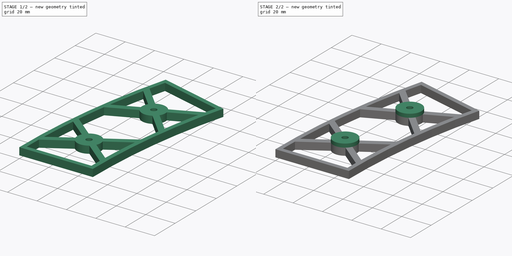
[diagram: build sequence overview — one tinted view per stage of 2, left to right]
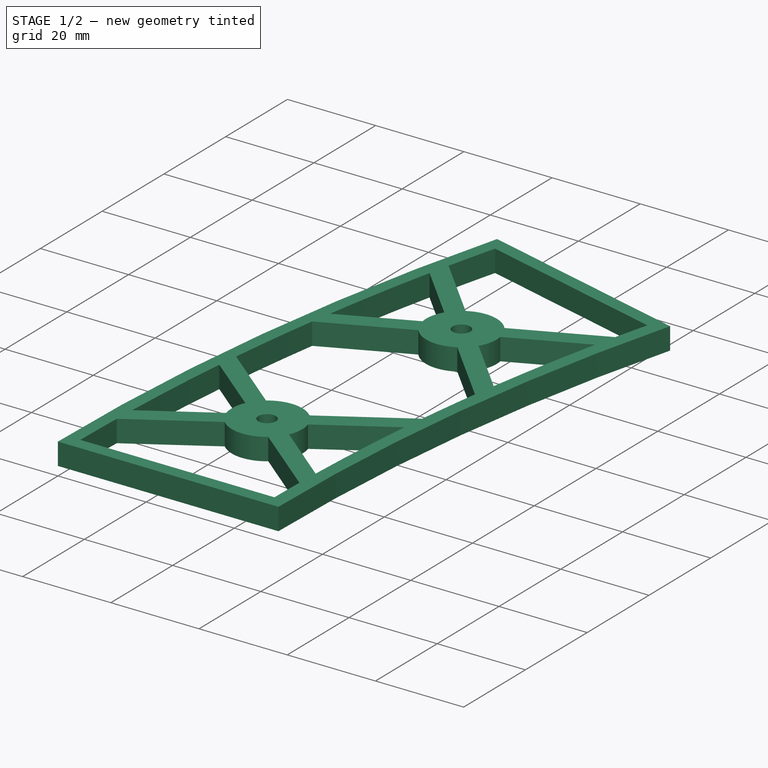
[diagram: stage 1 of 2 — iso view after this stage's code; geometry added in this stage tinted green]
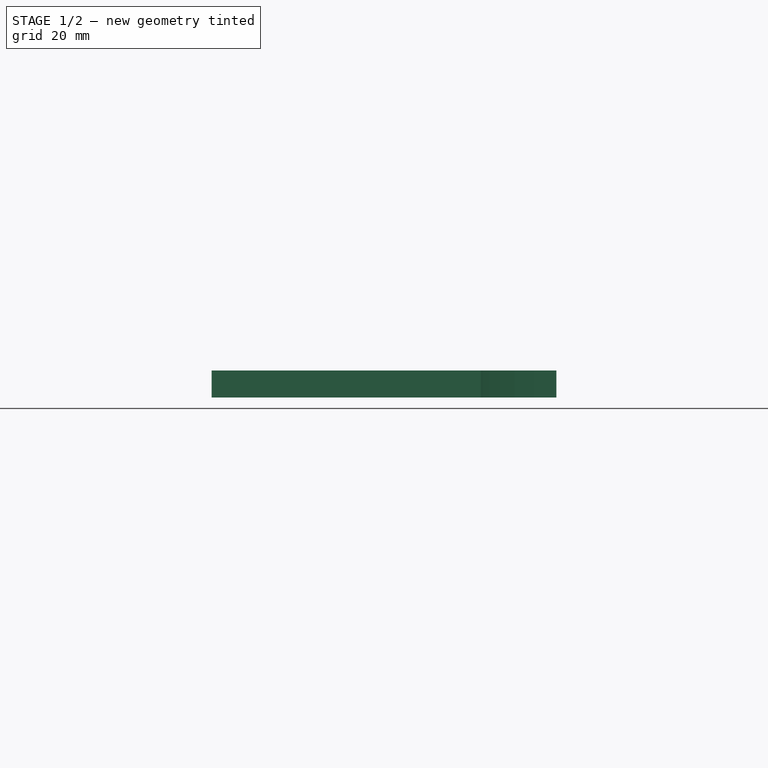
[diagram: stage 1 of 2 — front view after this stage's code; geometry added in this stage tinted green]
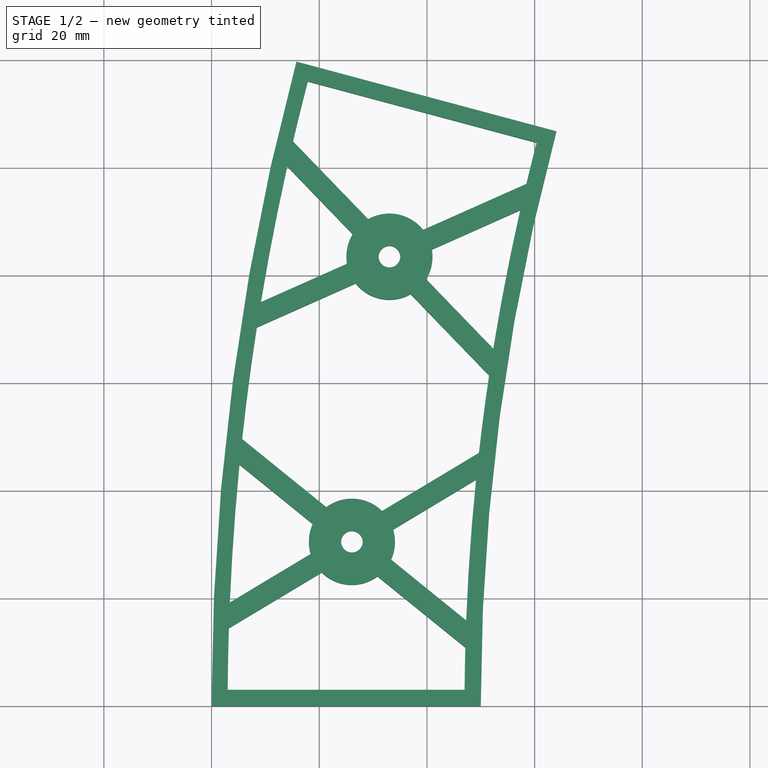
[diagram: stage 1 of 2 — top view after this stage's code; geometry added in this stage tinted green]
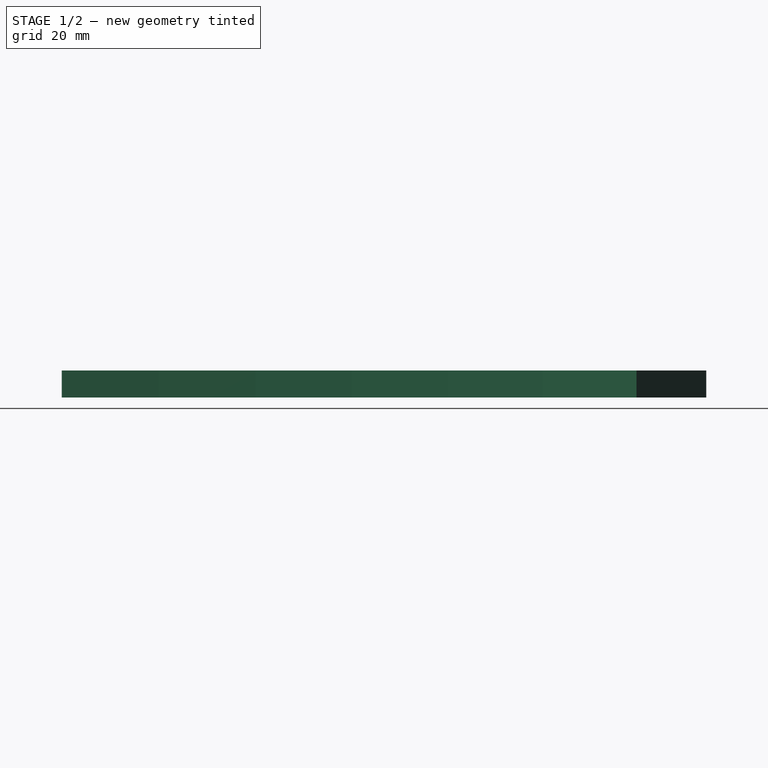
[diagram: stage 1 of 2 — right view after this stage's code; geometry added in this stage tinted green]
FCSTD DOCUMENT  (FreeCAD 0.19R20310 (Git))
Label: R2
License: All rights reserved
LicenseURL: http://en.wikipedia.org/wiki/All_rights_reserved
objects: Sketcher::SketchObject×2, PartDesign::Pad×2, PartDesign::Body×1
note: 7 computed .brp shape members not serialized (recipe doc carries the construction recipe); baked Part::Feature solids carry a one-line shape summary decoded from their .brp

FEATURE [Sketcher::SketchObject] Sketch
  MapMode = 5
  Support = -> [XY_Plane]
  sketch-geometry (49):
    g0: ArcOfCircle CenterX=462.5 CenterY=0 CenterZ=0 NormalX=0 NormalY=0 NormalZ=1 AngleXU=0 Radius=462.5 StartAngle=2.87979 EndAngle=3.14159
    g1: ArcOfCircle CenterX=462.5 CenterY=0 CenterZ=0 NormalX=0 NormalY=0 NormalZ=1 AngleXU=0 Radius=412.5 StartAngle=2.87979 EndAngle=3.14159
    g2: ArcOfCircle [constr] CenterX=462.5 CenterY=0 CenterZ=0 NormalX=0 NormalY=0 NormalZ=1 AngleXU=0 Radius=437.5 StartAngle=2.87979 EndAngle=3.14159
    g3: LineSegment StartX=50 StartY=5.05e-14 StartZ=0 EndX=0 EndY=5.66e-14 EndZ=0
    g4: LineSegment StartX=64.0556 StartY=106.763 StartZ=0 EndX=15.7593 EndY=119.704 EndZ=0
    g5: LineSegment StartX=47 StartY=3 StartZ=0 EndX=3 EndY=3 EndZ=0
    g6: LineSegment StartX=60.3814 StartY=104.642 StartZ=0 EndX=17.8806 EndY=116.03 EndZ=0
    g7: Circle CenterX=26.0657 CenterY=30.5185 CenterZ=0 NormalX=0 NormalY=0 NormalZ=1 AngleXU=0 Radius=2
    g8: ArcOfCircle CenterX=26.0657 CenterY=30.5185 CenterZ=0 NormalX=0 NormalY=0 NormalZ=1 AngleXU=0 Radius=8 StartAngle=2.71359 EndAngle=3.42996
    g9: LineSegment [constr] StartX=2.65406 StartY=49.4769 StartZ=0 EndX=50.1472 EndY=11.0177 EndZ=0
    g10: LineSegment [constr] StartX=0.243399 StartY=15.0028 StartZ=0 EndX=52.6268 EndY=46.478 EndZ=0
    g11: LineSegment StartX=21.3046 StartY=36.9474 StartZ=0 EndX=5.6754 EndY=49.6037 EndZ=0
    g12: LineSegment StartX=18.7873 StartY=33.8389 StartZ=0 EndX=5.18462 EndY=44.8541 EndZ=0
    g13: LineSegment StartX=18.3961 StartY=28.2433 StartZ=0 EndX=3.39269 EndY=19.2284 EndZ=0
    g14: LineSegment StartX=20.4562 StartY=24.8147 StartZ=0 EndX=3.21768 EndY=14.4567 EndZ=0
    g15: LineSegment StartX=30.8268 StartY=24.0895 StartZ=0 EndX=47.1318 EndY=10.886 EndZ=0
    g16: LineSegment StartX=33.3441 StartY=27.1981 StartZ=0 EndX=47.2936 EndY=15.902 EndZ=0
    g17: LineSegment StartX=33.7354 StartY=32.7936 StartZ=0 EndX=49.1212 EndY=42.0383 EndZ=0
    g18: LineSegment StartX=31.6752 StartY=36.2223 StartZ=0 EndX=49.6591 EndY=47.028 EndZ=0
    g19: ArcOfCircle CenterX=26.0657 CenterY=30.5185 CenterZ=0 NormalX=0 NormalY=0 NormalZ=1 AngleXU=0 Radius=8 StartAngle=3.93532 EndAngle=5.34983
    g20: ArcOfCircle CenterX=26.0657 CenterY=30.5185 CenterZ=0 NormalX=0 NormalY=0 NormalZ=1 AngleXU=0 Radius=8 StartAngle=5.85519 EndAngle=6.57156
    g21: ArcOfCircle CenterX=26.0657 CenterY=30.5185 CenterZ=0 NormalX=0 NormalY=0 NormalZ=1 AngleXU=0 Radius=8 StartAngle=0.793732 EndAngle=2.20823
    g22: ArcOfCircle CenterX=462.5 CenterY=0 CenterZ=0 NormalX=0 NormalY=0 NormalZ=1 AngleXU=0 Radius=415.511 StartAngle=3.11539 EndAngle=3.13437
    g23: ArcOfCircle CenterX=462.5 CenterY=0 CenterZ=0 NormalX=0 NormalY=0 NormalZ=1 AngleXU=0 Radius=415.511 StartAngle=3.04025 EndAngle=3.10331
    g24: ArcOfCircle CenterX=462.5 CenterY=0 CenterZ=0 NormalX=0 NormalY=0 NormalZ=1 AngleXU=0 Radius=459.51 StartAngle=3.11013 EndAngle=3.13506
    g25: ArcOfCircle CenterX=462.5 CenterY=0 CenterZ=0 NormalX=0 NormalY=0 NormalZ=1 AngleXU=0 Radius=459.51 StartAngle=3.04382 EndAngle=3.09973
    g26: ArcOfCircle CenterX=462.5 CenterY=0 CenterZ=0 NormalX=0 NormalY=0 NormalZ=1 AngleXU=0 Radius=415.511 StartAngle=2.88701 EndAngle=2.906
    g27: ArcOfCircle CenterX=462.5 CenterY=0 CenterZ=0 NormalX=0 NormalY=0 NormalZ=1 AngleXU=0 Radius=459.51 StartAngle=2.88632 EndAngle=2.91126
    g28: LineSegment [constr] StartX=26.0657 StartY=30.5185 StartZ=0 EndX=462.5 EndY=3.6e-15 EndZ=0
    g29: LineSegment StartX=39.8576 StartY=79.2963 StartZ=0 EndX=52.3264 EndY=66.3844 EndZ=0
    g30: LineSegment StartX=36.9802 StartY=76.5176 StartZ=0 EndX=51.5546 EndY=61.4255 EndZ=0
    g31: LineSegment [constr] StartX=12.1114 StartY=105.149 StartZ=0 EndX=54.5635 EndY=61.1887 EndZ=0
    g32: ArcOfCircle CenterX=33.0381 CenterY=83.4789 CenterZ=0 NormalX=0 NormalY=0 NormalZ=1 AngleXU=0 Radius=8 StartAngle=5.73301 EndAngle=6.44938
    g33: LineSegment [constr] StartX=33.0381 StartY=83.4789 StartZ=0 EndX=462.5 EndY=0 EndZ=0
    g34: ArcOfCircle CenterX=33.0381 CenterY=83.4789 CenterZ=0 NormalX=0 NormalY=0 NormalZ=1 AngleXU=0 Radius=8 StartAngle=3.81315 EndAngle=5.22765
    g35: LineSegment StartX=26.7753 StartY=78.5013 StartZ=0 EndX=8.40292 EndY=70.3214 EndZ=0
    g36: LineSegment [constr] StartX=5.51738 StartY=71.2259 StartZ=0 EndX=61.3462 EndY=96.0825 EndZ=0
    g37: LineSegment StartX=25.1483 StartY=82.1555 StartZ=0 EndX=9.15816 EndY=75.0362 EndZ=0
    g38: ArcOfCircle CenterX=33.0381 CenterY=83.4789 CenterZ=0 NormalX=0 NormalY=0 NormalZ=1 AngleXU=0 Radius=8 StartAngle=2.59142 EndAngle=3.30779
    g39: LineSegment StartX=26.2186 StartY=87.6616 StartZ=0 EndX=14.0597 EndY=100.253 EndZ=0
    g40: LineSegment StartX=29.096 StartY=90.4402 StartZ=0 EndX=15.1257 EndY=104.907 EndZ=0
    g41: ArcOfCircle CenterX=33.0381 CenterY=83.4789 CenterZ=0 NormalX=0 NormalY=0 NormalZ=1 AngleXU=0 Radius=8 StartAngle=0.671559 EndAngle=2.08606
    g42: LineSegment StartX=39.3009 StartY=88.4566 StartZ=0 EndX=58.4676 EndY=96.9902 EndZ=0
    g43: LineSegment StartX=40.9279 StartY=84.8024 StartZ=0 EndX=57.3256 EndY=92.1032 EndZ=0
    g44: Circle CenterX=33.0381 CenterY=83.4789 CenterZ=0 NormalX=0 NormalY=0 NormalZ=1 AngleXU=0 Radius=2
    g45: ArcOfCircle CenterX=462.5 CenterY=0 CenterZ=0 NormalX=0 NormalY=0 NormalZ=1 AngleXU=0 Radius=459.51 StartAngle=2.98795 EndAngle=3.03343
    g46: ArcOfCircle CenterX=462.5 CenterY=0 CenterZ=0 NormalX=0 NormalY=0 NormalZ=1 AngleXU=0 Radius=415.511 StartAngle=2.99322 EndAngle=3.02817
    g47: ArcOfCircle CenterX=462.5 CenterY=0 CenterZ=0 NormalX=0 NormalY=0 NormalZ=1 AngleXU=0 Radius=459.51 StartAngle=2.92165 EndAngle=2.97756
    g48: ArcOfCircle CenterX=462.5 CenterY=0 CenterZ=0 NormalX=0 NormalY=0 NormalZ=1 AngleXU=0 Radius=415.511 StartAngle=2.91807 EndAngle=2.98114
  constraints (162):
    c: PointOnObject(g0,g-1)
    c: Coincident(g0,g-1)
    c: PointOnObject(g1,g-1)
    c: Coincident(g2,g0)
    c: PointOnObject(g2,g-1)
    c: Coincident(g0,g1)
    c: Radius(g2) = 437.5
    c: DistanceX(g0,g2) = 25
    c: DistanceX(g2,g1) = 25
    c: Coincident(g3,g1)
    c: Coincident(g3,g0)
    c: Coincident(g4,g1)
    c: Coincident(g4,g0)
    c: PointOnObject(g2,g4)
    c: Perpendicular(g2,g4)
    c: Angle(g4,g3) = 0.261799
    c: Coincident(g5,g22)
    c: Coincident(g5,g24)
    c: Horizontal(g5)
    c: Parallel(g6,g4)
    c: DistanceY(g1,g22) = 3
    c: DistanceX(g0,g24) = 3
    c: DistanceX(g22,g1) = 3
    c: Coincident(g8,g7)
    c: Radius(g8) = 8
    c: PointOnObject(g7,g10)
    c: PointOnObject(g7,g9)
    c: Parallel(g12,g9)
    c: Parallel(g9,g11)
    c: Coincident(g8,g12)
    c: PointOnObject(g14,g8)
    c: PointOnObject(g16,g8)
    c: PointOnObject(g15,g8)
    c: PointOnObject(g17,g8)
    c: PointOnObject(g18,g8)
    c: Parallel(g14,g10)
    c: Parallel(g13,g10)
    c: Parallel(g9,g15)
    c: Parallel(g9,g16)
    c: Parallel(g10,g17)
    c: Parallel(g10,g18)
    c: Equal(g8,g19)
    c: Coincident(g8,g13)
    c: Coincident(g8,g19)
    c: PointOnObject(g19,g14)
    c: Equal(g19,g20)
    c: PointOnObject(g19,g15)
    c: Coincident(g19,g20)
    c: PointOnObject(g20,g16)
    c: Equal(g20,g21)
    c: PointOnObject(g20,g17)
    c: Coincident(g20,g21)
    c: PointOnObject(g21,g18)
    c: Distance(g8,g9) = 2
    c: Distance(g15,g9) = 2
    c: Distance(g17,g10) = 2
    c: Distance(g14,g10) = 2
    c: Distance(g8,g10) = 2
    c: Coincident(g11,g21)
    c: PointOnObject(g21,g2)
    c: Coincident(g23,g16)
    c: Coincident(g22,g15)
    c: Coincident(g46,g18)
    c: Coincident(g23,g17)
    c: Coincident(g25,g13)
    c: Coincident(g24,g14)
    c: Coincident(g45,g11)
    c: Coincident(g25,g12)
    c: Distance(g16,g9) = 2
    c: Distance(g18,g10) = 2
    c: Distance(g11,g9) = 2
    c: Coincident(g28,g0)
    c: Angle(g28,g-1) = 0.0698132
    c: Coincident(g28,g7)
    c: Coincident(g38,g44)
    c: Radius(g38) = 8
    c: PointOnObject(g44,g36)
    c: PointOnObject(g44,g31)
    c: Parallel(g39,g31)
    c: Parallel(g31,g40)
    c: Coincident(g38,g39)
    c: PointOnObject(g35,g38)
    c: PointOnObject(g29,g38)
    c: PointOnObject(g30,g38)
    c: PointOnObject(g43,g38)
    c: PointOnObject(g42,g38)
    c: Parallel(g35,g36)
    c: Parallel(g37,g36)
    c: Parallel(g31,g30)
    c: Parallel(g31,g29)
    c: Parallel(g36,g43)
    c: Parallel(g36,g42)
    c: Equal(g38,g34)
    c: Coincident(g38,g37)
    c: Coincident(g38,g34)
    c: PointOnObject(g34,g35)
    c: Equal(g34,g32)
    c: PointOnObject(g34,g30)
    c: Coincident(g34,g32)
    c: PointOnObject(g32,g29)
    c: Equal(g32,g41)
    c: PointOnObject(g32,g43)
    c: Coincident(g32,g41)
    c: PointOnObject(g41,g42)
    c: Distance(g38,g31) = 2
    c: Distance(g30,g31) = 2
    c: Distance(g43,g36) = 2
    c: Distance(g35,g36) = 2
    c: Distance(g38,g36) = 2
    c: Coincident(g40,g41)
    c: Distance(g29,g31) = 2
    c: Distance(g42,g36) = 2
    c: Distance(g40,g31) = 2
    c: Coincident(g33,g44)
    c: PointOnObject(g32,g2)
    c: PointOnObject(g43,g26)
    c: PointOnObject(g39,g27)
    c: Equal(g27,g45)
    c: Coincident(g47,g37)
    c: Coincident(g45,g35)
    c: Coincident(g27,g45)
    c: Equal(g26,g46)
    c: Coincident(g48,g29)
    c: Coincident(g46,g30)
    c: Coincident(g26,g46)
    c: Equal(g27,g47)
    c: Coincident(g27,g40)
    c: Coincident(g27,g47)
    c: Equal(g26,g48)
    c: Coincident(g26,g42)
    c: Coincident(g26,g48)
    c: PointOnObject(g47,g39)
    c: PointOnObject(g48,g43)
    c: Coincident(g33,g0)
    c: Angle(g33,g-1) = 0.191986
    c: Coincident(g26,g6)
    c: Coincident(g27,g6)
    c: Distance(g6,g4) = 3
    c: Coincident(g0,g26)
    c: Coincident(g0,g27)
    c: Coincident(g0,g22)
    c: Coincident(g0,g23)
    c: Coincident(g0,g24)
    c: Coincident(g0,g25)
    c: Equal(g45,g25)
    c: Equal(g25,g24)
    c: Equal(g22,g23)
    c: Equal(g23,g46)
    c: Angle(g31,g33) = 0.610865
    c: Angle(g33,g36) = 0.610865
    c: Angle(g28,g10) = 0.610865
    c: Angle(g9,g28) = 0.610865
    c: PointOnObject(g9,g0)
    c: PointOnObject(g36,g0)
    c: PointOnObject(g10,g0)
    c: PointOnObject(g9,g1)
    c: PointOnObject(g10,g1)
    c: PointOnObject(g31,g1)
    c: PointOnObject(g36,g1)
    c: PointOnObject(g31,g0)
    c: Radius(g44) = 2
    c: Radius(g7) = 2
FEATURE [PartDesign::Pad] Pad
  Length = 5
  Length2 = 100
  Profile = -> Sketch
  Type = 0
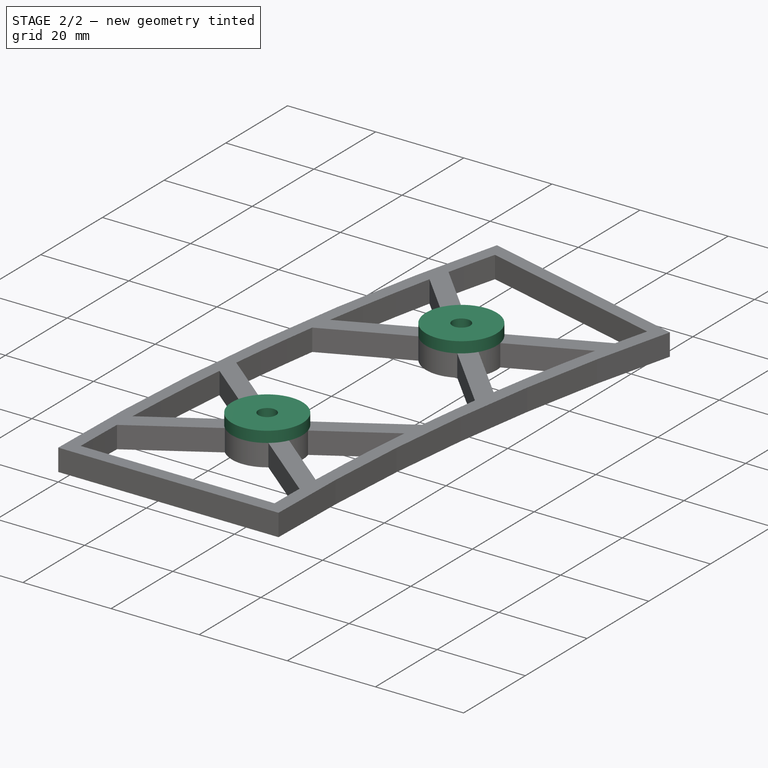
[diagram: stage 2 of 2 — iso view after this stage's code; geometry added in this stage tinted green]
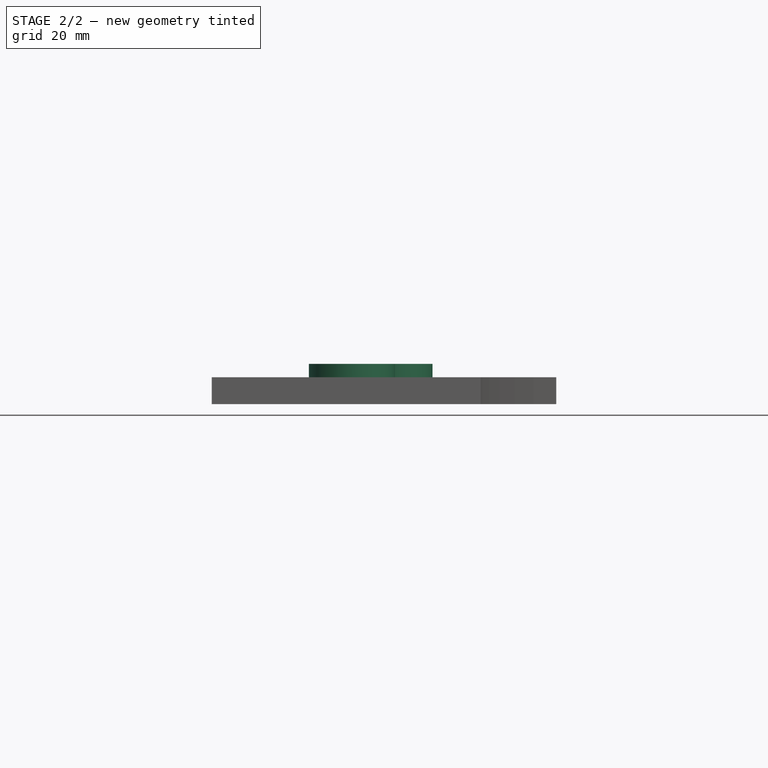
[diagram: stage 2 of 2 — front view after this stage's code; geometry added in this stage tinted green]
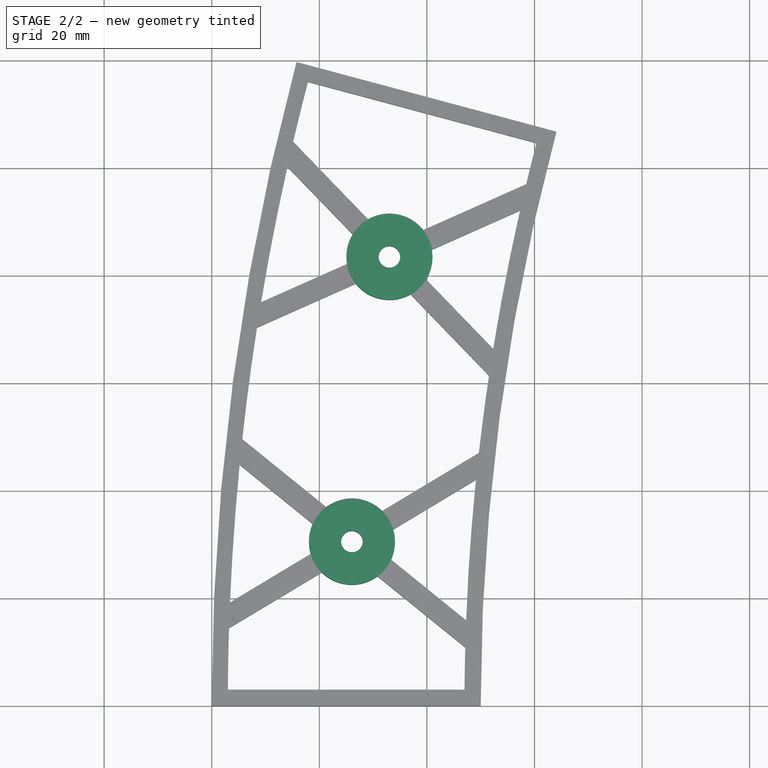
[diagram: stage 2 of 2 — top view after this stage's code; geometry added in this stage tinted green]
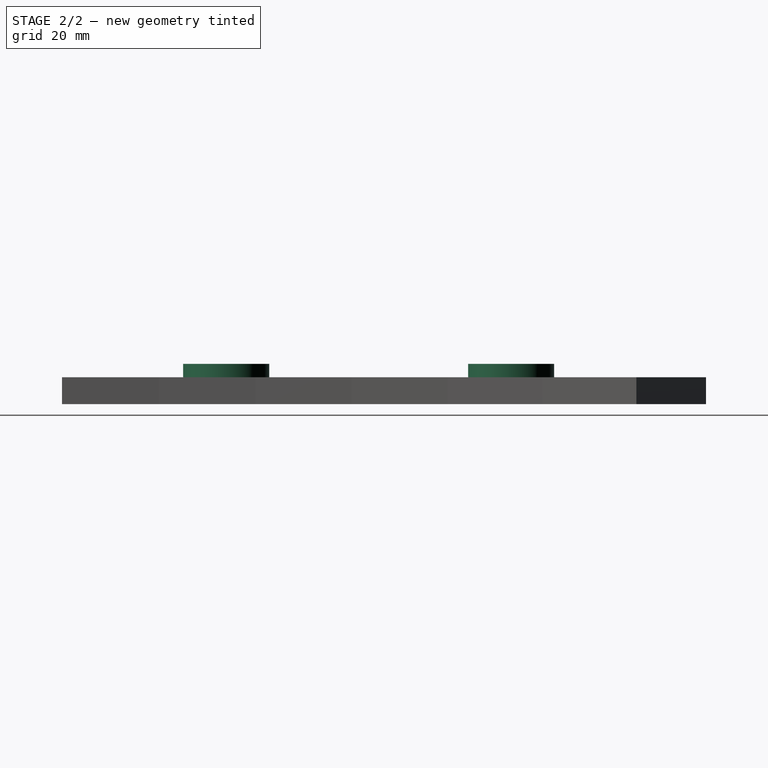
[diagram: stage 2 of 2 — right view after this stage's code; geometry added in this stage tinted green]
FEATURE [Sketcher::SketchObject] Sketch001
  ExternalGeometry = -> [Pad]
  MapMode = 5
  Placement = pos=(0,0,5) rot=(0,0,1;0rad)
  Support = -> [Pad]
  sketch-geometry (4):
    g0: Circle CenterX=33.0381 CenterY=83.4789 CenterZ=0 NormalX=0 NormalY=0 NormalZ=1 AngleXU=0 Radius=8
    g1: Circle CenterX=33.0405 CenterY=83.4543 CenterZ=0 NormalX=0 NormalY=0 NormalZ=1 AngleXU=0 Radius=2.02476
    g2: Circle CenterX=26.0657 CenterY=30.5185 CenterZ=0 NormalX=0 NormalY=0 NormalZ=1 AngleXU=0 Radius=2
    g3: Circle CenterX=26.0657 CenterY=30.5185 CenterZ=0 NormalX=0 NormalY=0 NormalZ=1 AngleXU=0 Radius=8
  constraints (6):
    c: Coincident(g0,g-3)
    c: PointOnObject(g-3,g0)
    c: Tangent(g1,g-4)
    c: Tangent(g2,g-5)
    c: Coincident(g3,g2)
    c: PointOnObject(g-6,g3)
FEATURE [PartDesign::Pad] Pad001
  BaseFeature = -> Pad
  Length = 2.5
  Length2 = 100
  Profile = -> Sketch001
  Type = 0
FEATURE [PartDesign::Body] Body
  Group = -> [Sketch,Pad,Sketch001,Pad001]
  Origin = -> Origin
  Tip = -> Pad001
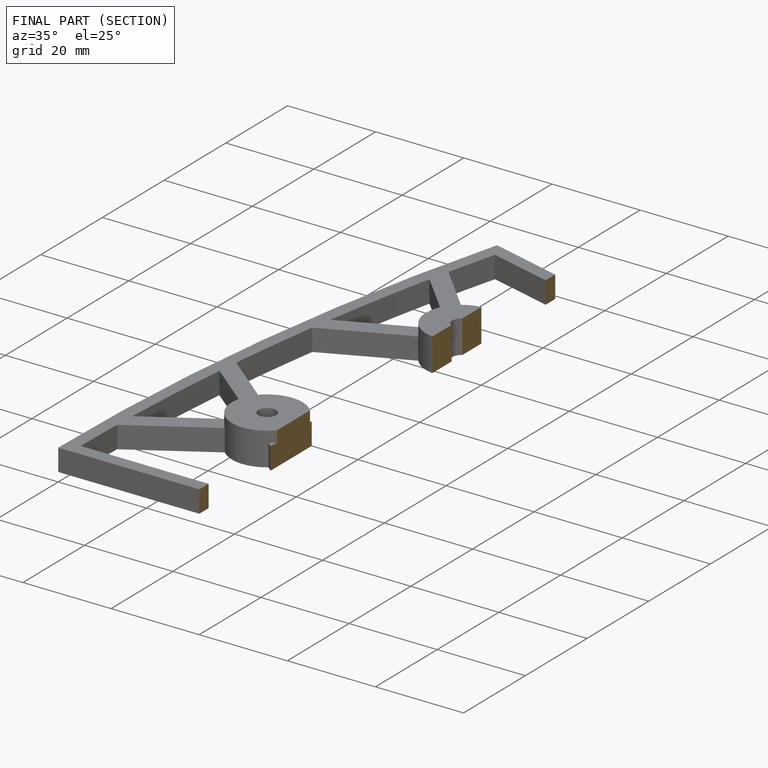
[diagram: finished part — half-section view (interior)]
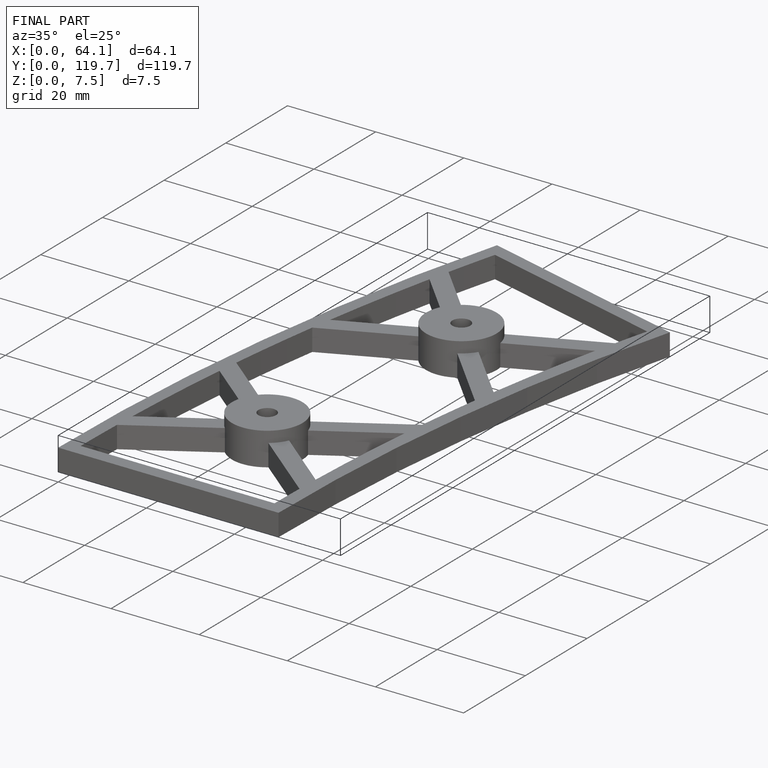
[diagram: finished part — iso view with bounding-box wireframe]
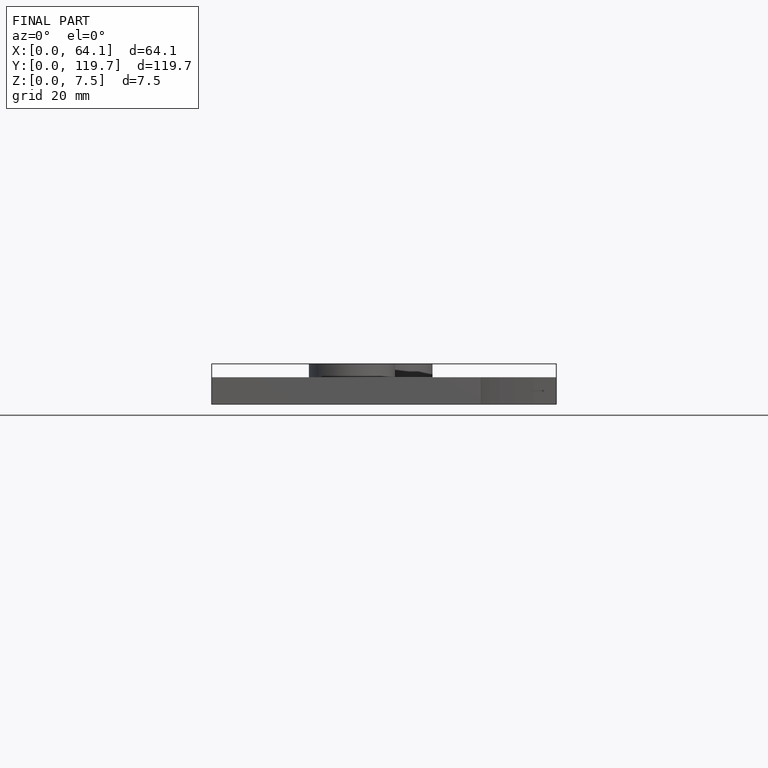
[diagram: finished part — front view with bounding-box wireframe]
